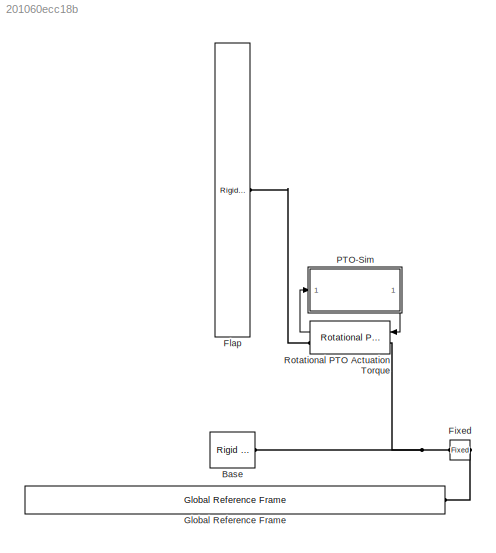
MODEL slx_201060ecc18b
KIND model
CONFIG AbsTol = auto
CONFIG EnableMultiTasking = on
CONFIG FixedStep = 0.01
CONFIG MaxStep = 0.01
CONFIG MinStep = auto
CONFIG RelTol = 1e-3
CONFIG SampleTimeConstraint = Unconstrained
CONFIG SolverName = ode4
CONFIG StartTime = 0
CONFIG StopTime = 400
BLOCK [Reference] Base  REF=WECSim_Lib_Body_Elements/Rigid Body
  AttributesFormatString = %<body>
  Ports = [0, 0, 0, 0, 0, 0, 1]
  SourceBlock = WECSim_Lib_Body_Elements/Rigid Body
  SourceProductName = WEC-Sim
  SourceType = Rigid Body
BLOCK [Reference] Fixed  REF=WECSim_Lib_Constraints/Fixed
  AttributesFormatString = %<constraint>
  NameLocation = top
  Ports = [0, 0, 0, 0, 0, 1, 1]
  SourceBlock = WECSim_Lib_Constraints/Fixed
  SourceProductName = WEC-Sim
  SourceType = Constraints
BLOCK [Reference] Flap  REF=WECSim_Lib_Body_Elements/Rigid Body
  AttributesFormatString = %<body>
  Ports = [0, 0, 0, 0, 0, 0, 1]
  SourceBlock = WECSim_Lib_Body_Elements/Rigid Body
  SourceProductName = WEC-Sim
  SourceType = Rigid Body
BLOCK [Reference] Global Reference Frame  REF=WECSim_Lib_Frames/Global Reference Frame
  Ports = [0, 0, 0, 0, 0, 0, 1]
  SourceBlock = WECSim_Lib_Frames/Global Reference Frame
  SourceProductName = WEC-Sim
  SourceType = Frames
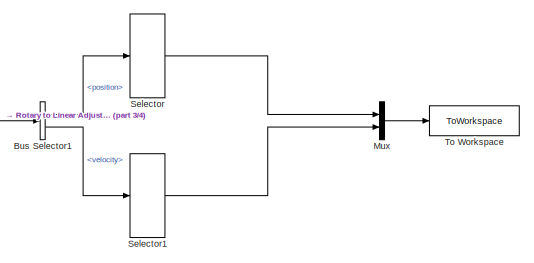
[diagram: PTO-Sim - part 1/4, top left region]
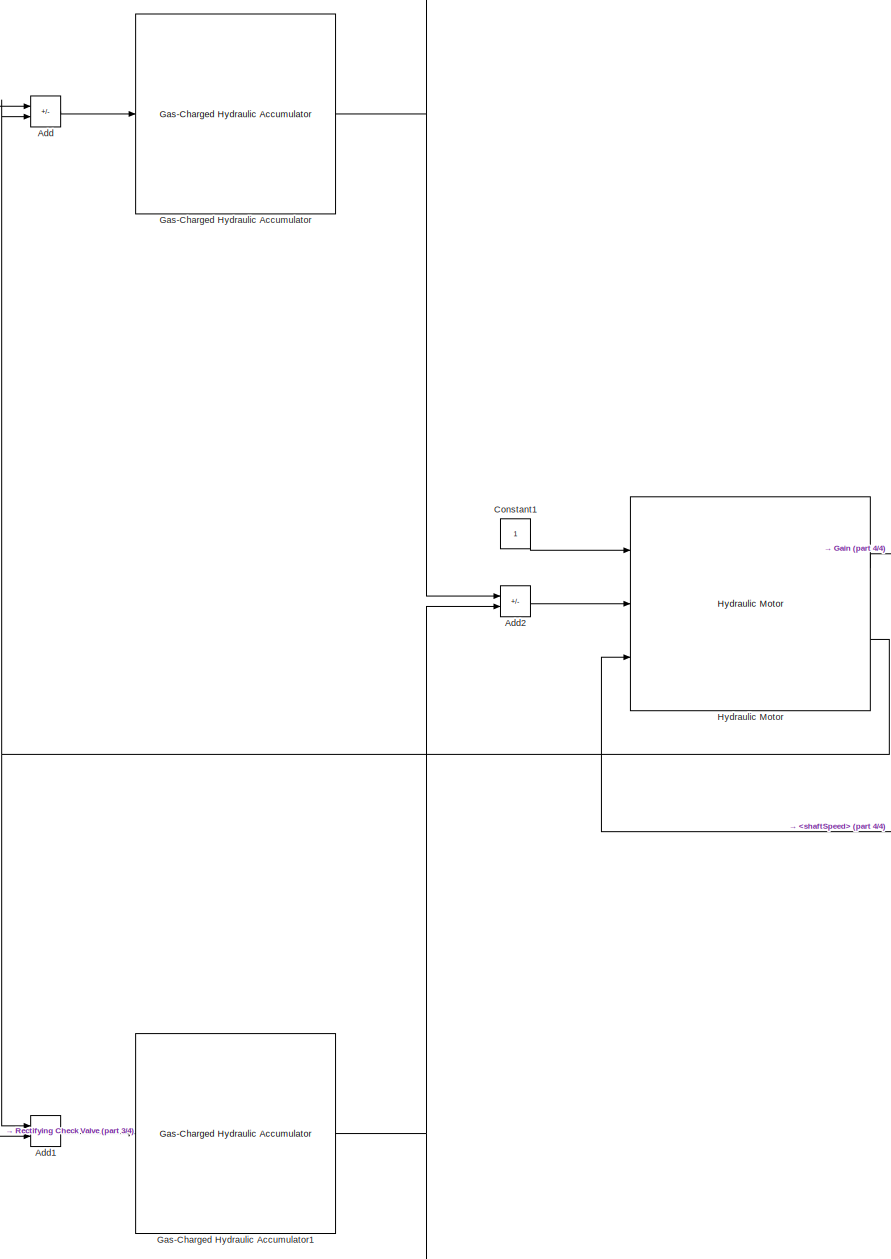
[diagram: PTO-Sim - part 2/4, central region]
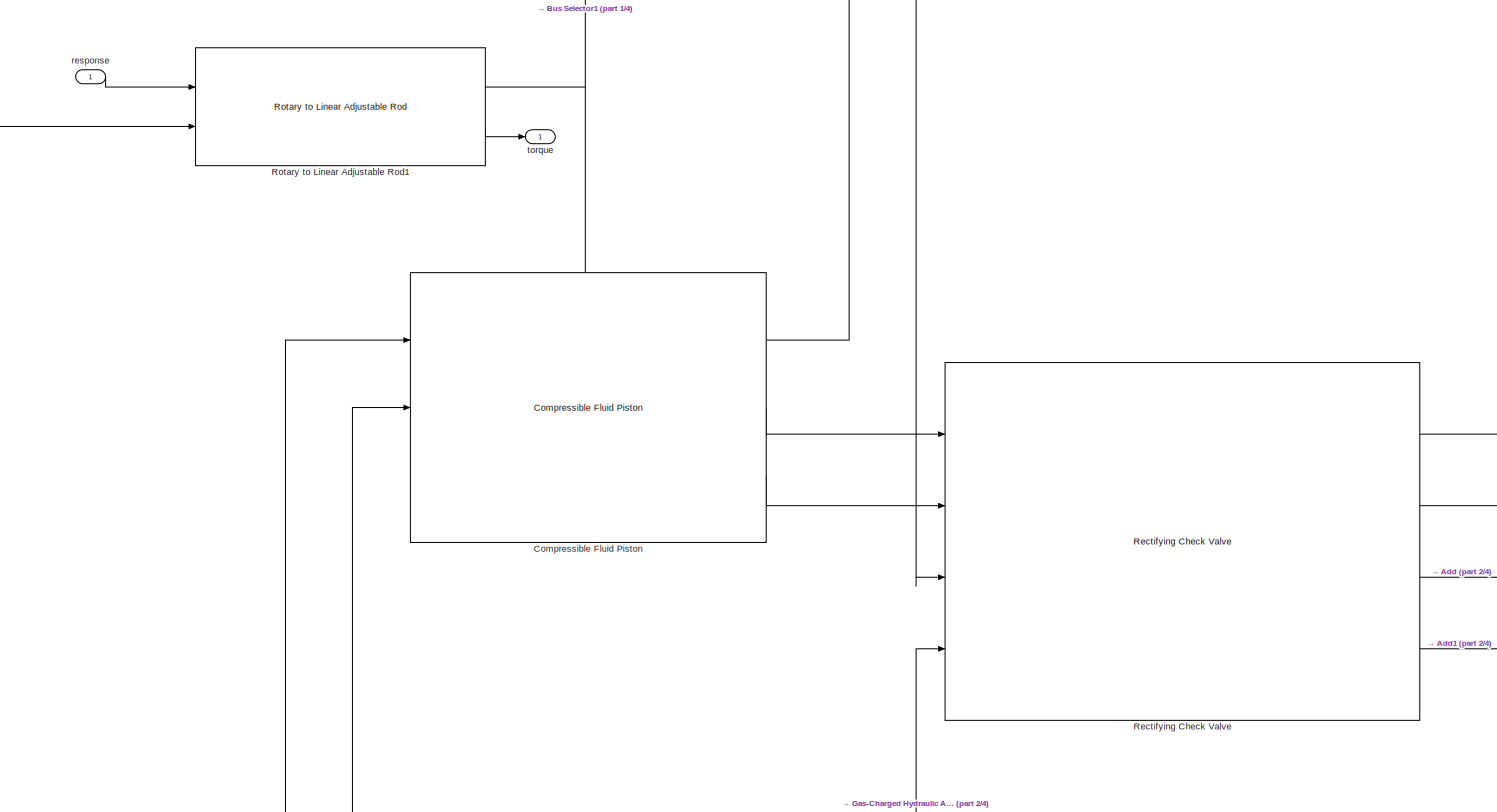
[diagram: PTO-Sim - part 3/4, middle left region]
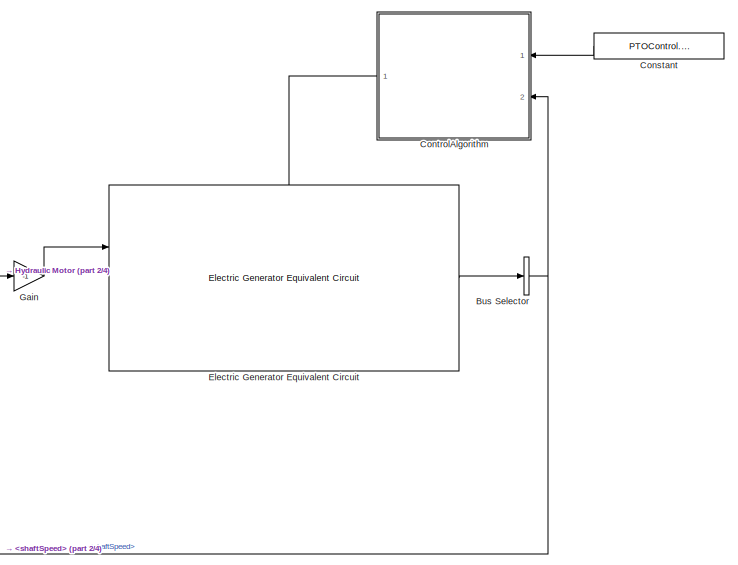
[diagram: PTO-Sim - part 4/4, middle right region]
BLOCK [SubSystem] PTO-Sim
  NameLocation = top
  Ports = [1, 1]
  RequestExecContextInheritance = off
BLOCK [Sum] PTO-Sim/Add
  IconShape = rectangular
  Inputs = +-
  Ports = [2, 1]
BLOCK [Sum] PTO-Sim/Add1
  IconShape = rectangular
  Ports = [2, 1]
BLOCK [Sum] PTO-Sim/Add2
  IconShape = rectangular
  Inputs = +-
  Ports = [2, 1]
BLOCK [BusSelector] PTO-Sim/Bus Selector
  OutputSignals = shaftSpeed
  Ports = [1, 1]
BLOCK [BusSelector] PTO-Sim/Bus Selector1
  OutputSignals = position,velocity
  Ports = [1, 2]
BLOCK [Reference] PTO-Sim/Compressible Fluid Piston  REF=PTOSim_Lib/Hydraulic/Compressible Fluid Piston
  Ports = [3, 3]
  SourceBlock = PTOSim_Lib/Hydraulic/Compressible Fluid Piston
  SourceProductName = PTO-Sim
BLOCK [Constant] PTO-Sim/Constant
  NameLocation = top
  Value = PTOControl.ShaftSpeedRef
BLOCK [Constant] PTO-Sim/Constant1
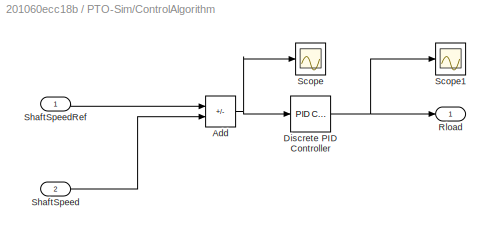
BLOCK [SubSystem] PTO-Sim/ControlAlgorithm
  NameLocation = top
  Ports = [2, 1]
  RequestExecContextInheritance = off
BLOCK [Sum] PTO-Sim/ControlAlgorithm/Add
  IconShape = rectangular
  Inputs = +-
  Ports = [2, 1]
BLOCK [Reference] PTO-Sim/ControlAlgorithm/Discrete PID Controller  REF=slpidlib/PID Controller
  Ports = [1, 1]
  SourceBlock = slpidlib/PID Controller
  SourceProductBaseCode = SL
  SourceType = PID 1dof
BLOCK [Outport] PTO-Sim/ControlAlgorithm/Rload
BLOCK [Scope] PTO-Sim/ControlAlgorithm/Scope
  Floating = off
  NumInputPorts = 1
  Ports = [1]
  ScopeSpecificationString = Simulink.scopes.TimeScopeBlockCfg('CurrentConfiguration', extmgr.ConfigurationSet(extmgr.Configuration('Core','General UI',true),extmgr.Configuration('Core','Source UI',true),extmgr.Configuration('Sources','WiredSimulink',true),extmgr.Configuration('Visuals','Time Domain',true,'SerializedDisplays',{struct('MinYLimReal','-14603357561559.17188','MaxYLimReal','1628758072045.55249','YLabelReal','','Mi...<+1496ch>
BLOCK [Scope] PTO-Sim/ControlAlgorithm/Scope1
  Floating = off
  NumInputPorts = 1
  Ports = [1]
  ScopeSpecificationString = Simulink.scopes.TimeScopeBlockCfg('CurrentConfiguration', extmgr.ConfigurationSet(extmgr.Configuration('Core','General UI',true),extmgr.Configuration('Core','Source UI',true),extmgr.Configuration('Sources','WiredSimulink',true,'DataLoggingVariableName','ScopeData1'),extmgr.Configuration('Visuals','Time Domain',true,'SerializedDisplays',{struct('MinYLimReal','0.04','MaxYLimReal','0.06','YLabelReal'...<+1411ch>
BLOCK [Inport] PTO-Sim/ControlAlgorithm/ShaftSpeed
  Port = 2
BLOCK [Inport] PTO-Sim/ControlAlgorithm/ShaftSpeedRef
BLOCK [Reference] PTO-Sim/Electric Generator Equivalent Circuit  REF=PTOSim_Lib/Electric/Electric Generator Equivalent Circuit
  Ports = [2, 1]
  SourceBlock = PTOSim_Lib/Electric/Electric Generator Equivalent Circuit
  SourceProductName = PTO-Sim
BLOCK [Gain] PTO-Sim/Gain
  Gain = -1
BLOCK [Reference] PTO-Sim/Gas-Charged Hydraulic Accumulator  REF=PTOSim_Lib/Hydraulic/Gas-Charged Hydraulic Accumulator
  Ports = [1, 1]
  SourceBlock = PTOSim_Lib/Hydraulic/Gas-Charged Hydraulic Accumulator
  SourceProductName = PTO-Sim
BLOCK [Reference] PTO-Sim/Gas-Charged Hydraulic Accumulator1  REF=PTOSim_Lib/Hydraulic/Gas-Charged Hydraulic Accumulator
  Ports = [1, 1]
  SourceBlock = PTOSim_Lib/Hydraulic/Gas-Charged Hydraulic Accumulator
  SourceProductName = PTO-Sim
BLOCK [Reference] PTO-Sim/Hydraulic Motor  REF=PTOSim_Lib/Hydraulic/Hydraulic Motor
  Ports = [3, 2]
  SourceBlock = PTOSim_Lib/Hydraulic/Hydraulic Motor
  SourceProductName = PTO-Sim
BLOCK [Mux] PTO-Sim/Mux
  DisplayOption = bar
  Inputs = 2
  Ports = [2, 1]
BLOCK [Reference] PTO-Sim/Rectifying Check Valve  REF=PTOSim_Lib/Hydraulic/Rectifying Check Valve
  Ports = [4, 4]
  SourceBlock = PTOSim_Lib/Hydraulic/Rectifying Check Valve
  SourceProductName = PTO-Sim
BLOCK [Reference] PTO-Sim/Rotary to Linear Adjustable Rod1  REF=PTOSim_Lib/Motion Conversion/Rotary to Linear
Adjustable Rod
  Ports = [2, 2]
  SourceBlock = PTOSim_Lib/Motion Conversion/Rotary to Linear\nAdjustable Rod
  SourceProductName = PTO-Sim
BLOCK [Selector] PTO-Sim/Selector
  IndexOptions = Index vector (dialog)
  Indices = 3
  InputPortWidth = 6
  OutputSizes = 1
  Ports = [1, 1]
BLOCK [Selector] PTO-Sim/Selector1
  IndexOptions = Index vector (dialog)
  Indices = 3
  InputPortWidth = 6
  OutputSizes = 1
  Ports = [1, 1]
BLOCK [ToWorkspace] PTO-Sim/To Workspace
  FixptAsFi = on
  MaxDataPoints = inf
  Ports = [1]
  SampleTime = -1
  SaveFormat = Structure With Time
  VariableName = MyOutput
BLOCK [Inport] PTO-Sim/response
BLOCK [Outport] PTO-Sim/torque
  VectorParamsAs1DForOutWhenUnconnected = off
BLOCK [Reference] Rotational PTO Actuation Torque  REF=WECSim_Lib_PTOs/Rotational PTO
Actuation Torque
  AttributesFormatString = %<pto>
  Ports = [1, 1, 0, 0, 0, 1, 1]
  SourceBlock = WECSim_Lib_PTOs/Rotational PTO\nActuation Torque
  SourceProductName = WEC-Sim
  SourceType = PTO
LINE PTO-Sim/Add1:1 -> PTO-Sim/Gas-Charged Hydraulic Accumulator1:1
LINE PTO-Sim/Add2:1 -> PTO-Sim/Hydraulic Motor:2
LINE PTO-Sim/Add:1 -> PTO-Sim/Gas-Charged Hydraulic Accumulator:1
LINE PTO-Sim/Bus Selector1:1 -> PTO-Sim/Selector:1
LINE PTO-Sim/Bus Selector1:2 -> PTO-Sim/Selector1:1
NET PTO-Sim/Bus Selector:1 -> PTO-Sim/ControlAlgorithm:2, PTO-Sim/Hydraulic Motor:3
LINE PTO-Sim/Compressible Fluid Piston:1 -> PTO-Sim/Rotary to Linear Adjustable Rod1:2
LINE PTO-Sim/Compressible Fluid Piston:2 -> PTO-Sim/Rectifying Check Valve:1
LINE PTO-Sim/Compressible Fluid Piston:3 -> PTO-Sim/Rectifying Check Valve:2
LINE PTO-Sim/Constant1:1 -> PTO-Sim/Hydraulic Motor:1
LINE PTO-Sim/Constant:1 -> PTO-Sim/ControlAlgorithm:1
NET PTO-Sim/ControlAlgorithm/Add:1 -> PTO-Sim/ControlAlgorithm/Discrete PID Controller:1, PTO-Sim/ControlAlgorithm/Scope:1
NET PTO-Sim/ControlAlgorithm/Discrete PID Controller:1 -> PTO-Sim/ControlAlgorithm/Rload:1, PTO-Sim/ControlAlgorithm/Scope1:1
LINE PTO-Sim/ControlAlgorithm/ShaftSpeed:1 -> PTO-Sim/ControlAlgorithm/Add:2
LINE PTO-Sim/ControlAlgorithm/ShaftSpeedRef:1 -> PTO-Sim/ControlAlgorithm/Add:1
LINE PTO-Sim/ControlAlgorithm:1 -> PTO-Sim/Electric Generator Equivalent Circuit:2
LINE PTO-Sim/Electric Generator Equivalent Circuit:1 -> PTO-Sim/Bus Selector:1
LINE PTO-Sim/Gain:1 -> PTO-Sim/Electric Generator Equivalent Circuit:1
NET PTO-Sim/Gas-Charged Hydraulic Accumulator1:1 -> PTO-Sim/Add2:2, PTO-Sim/Rectifying Check Valve:4
NET PTO-Sim/Gas-Charged Hydraulic Accumulator:1 -> PTO-Sim/Add2:1, PTO-Sim/Rectifying Check Valve:3
LINE PTO-Sim/Hydraulic Motor:1 -> PTO-Sim/Gain:1
NET PTO-Sim/Hydraulic Motor:2 -> PTO-Sim/Add1:1, PTO-Sim/Add:2
LINE PTO-Sim/Mux:1 -> PTO-Sim/To Workspace:1
LINE PTO-Sim/Rectifying Check Valve:1 -> PTO-Sim/Compressible Fluid Piston:1
LINE PTO-Sim/Rectifying Check Valve:2 -> PTO-Sim/Compressible Fluid Piston:2
LINE PTO-Sim/Rectifying Check Valve:3 -> PTO-Sim/Add:1
LINE PTO-Sim/Rectifying Check Valve:4 -> PTO-Sim/Add1:2
NET PTO-Sim/Rotary to Linear Adjustable Rod1:1 -> PTO-Sim/Bus Selector1:1, PTO-Sim/Compressible Fluid Piston:3
LINE PTO-Sim/Rotary to Linear Adjustable Rod1:2 -> PTO-Sim/torque:1
LINE PTO-Sim/Selector1:1 -> PTO-Sim/Mux:2
LINE PTO-Sim/Selector:1 -> PTO-Sim/Mux:1
LINE PTO-Sim/response:1 -> PTO-Sim/Rotary to Linear Adjustable Rod1:1
LINE PTO-Sim:1 -> Rotational PTO Actuation Torque:1
LINE Rotational PTO Actuation Torque:1 -> PTO-Sim:1
PNET net1: Base:RConn1 -- Fixed:RConn1 -- Rotational PTO Actuation Torque:LConn1
PLINE Fixed:LConn1 -- Global Reference Frame:RConn1
PLINE Flap:RConn1 -- Rotational PTO Actuation Torque:RConn1
note: NET lines group one-source signal fan-out (src -> all destinations, sorted); 1:1 wires keep LINE; PNET lines group multi-terminal physical nets as a canonical sorted terminal list (undirected conserving connections); 2-terminal nets keep the pairwise PLINE form
